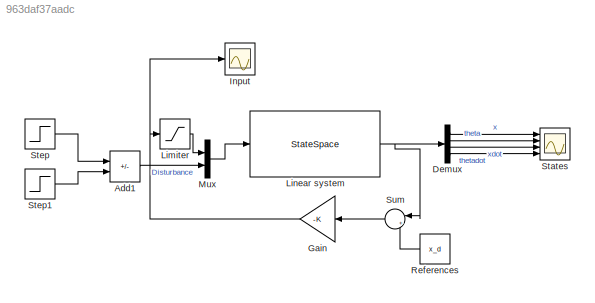
MODEL slx_963daf37aadc
KIND model
CONFIG AbsTol = auto
CONFIG EnableMultiTasking = off
CONFIG FixedStep = auto
CONFIG MaxStep = auto
CONFIG MinStep = auto
CONFIG RelTol = 1e-3
CONFIG SampleTimeConstraint = Unconstrained
CONFIG SolverName = VariableStepAuto
CONFIG StartTime = 0.0
CONFIG StopTime = 5
BLOCK [Sum] Add1
  IconShape = rectangular
  Inputs = +-
  Ports = [2, 1]
BLOCK [Demux] Demux
  Ports = [1, 4]
BLOCK [Gain] Gain
  Gain = -K
  Multiplication = Matrix(K*u) (u vector)
BLOCK [Scope] Input
  Floating = off
  NumInputPorts = 1
  Ports = [1]
  ScopeSpecificationString = Simulink.scopes.TimeScopeBlockCfg('CurrentConfiguration', extmgr.ConfigurationSet(extmgr.Configuration('Core','General UI',true,'FigureColor',[1 1 1]),extmgr.Configuration('Core','Source UI',true),extmgr.Configuration('Sources','WiredSimulink',true,'DataLoggingVariableName','ScopeData1'),extmgr.Configuration('Visuals','Time Domain',true,'SerializedDisplays',{struct('MinYLimReal','-1.43583','MaxYLi...<+1574ch>
BLOCK [Saturate] Limiter
  LowerLimit = -5
  UpperLimit = 5
BLOCK [StateSpace] Linear system
  A = sys.A
  B = [sys.B,dist]
  C = sys.C
  D = [sys.D,zeros(4,1)]
  InitialCondition = initial_conditions'
  Ports = [1, 1]
BLOCK [Mux] Mux
  DisplayOption = bar
  Inputs = 2
  Ports = [2, 1]
BLOCK [Constant] References
  Value = x_d
BLOCK [Scope] States
  Floating = off
  NumInputPorts = 4
  Ports = [4]
  ScopeSpecificationString = Simulink.scopes.TimeScopeBlockCfg('CurrentConfiguration', extmgr.ConfigurationSet(extmgr.Configuration('Core','General UI',true,'FigureColor',[1 1 1]),extmgr.Configuration('Core','Source UI',true),extmgr.Configuration('Sources','WiredSimulink',true),extmgr.Configuration('Visuals','Time Domain',true,'SerializedDisplays',{struct('MinYLimReal','-0.3745','MaxYLimReal','0.87338','YLabelReal','','MinYLi...<+1908ch>
BLOCK [Step] Step
  SampleTime = 0
BLOCK [Step] Step1
  SampleTime = 0
  Time = 1.1
BLOCK [Sum] Sum
  Inputs = |+-
  Ports = [2, 1]
LINE Add1:1 -> Mux:2
LINE Demux:1 -> States:1
LINE Demux:2 -> States:2
LINE Demux:3 -> States:3
LINE Demux:4 -> States:4
NET Gain:1 -> Input:1, Limiter:1
LINE Limiter:1 -> Mux:1
NET Linear system:1 -> Demux:1, Sum:1
LINE Mux:1 -> Linear system:1
LINE References:1 -> Sum:2
LINE Step1:1 -> Add1:2
LINE Step:1 -> Add1:1
LINE Sum:1 -> Gain:1
note: NET lines group one-source signal fan-out (src -> all destinations, sorted); 1:1 wires keep LINE
